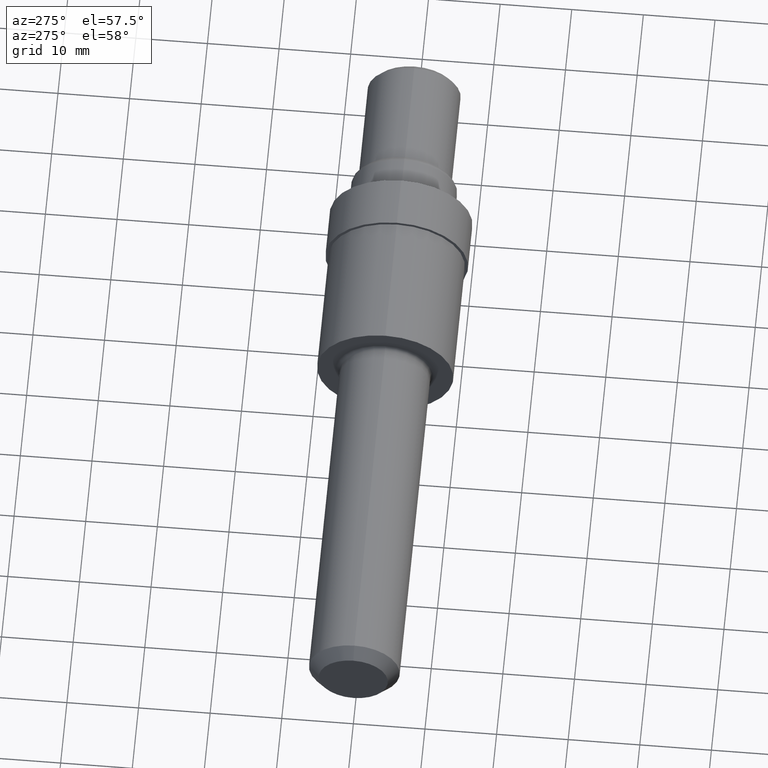
[diagram: clean part render]
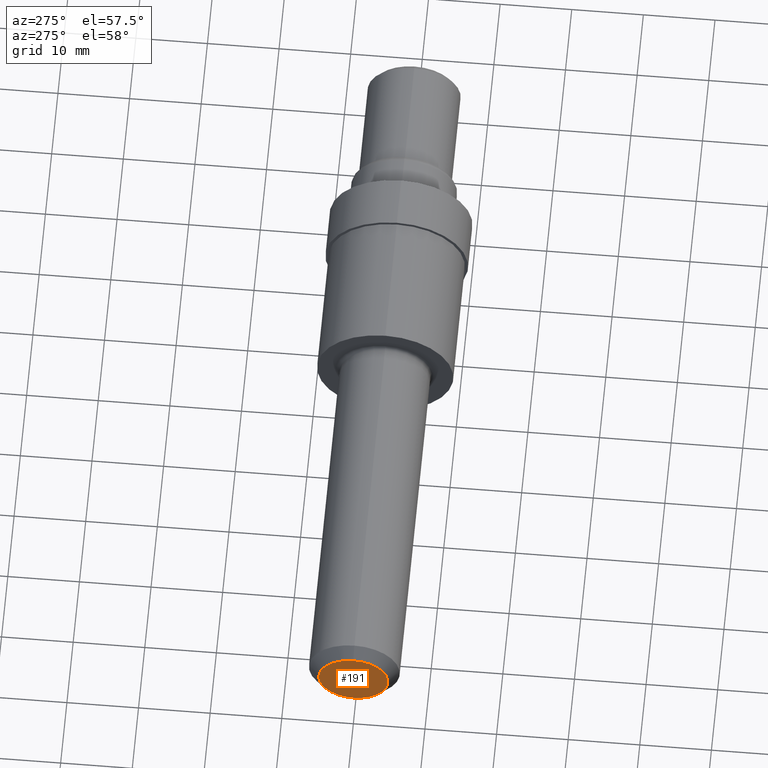
[diagram: same view with one face highlighted and labeled with its STEP entity id]
A machine part, auxiliary view. The second image highlights one B-rep face of the part: STEP entity #191.
In plain terms, the highlighted planar face has unit normal (1, 0, 0).
Its self-contained STEP definition (entity closure, byte-faithful):
#14 = DIRECTION ( 'NONE',  ( 0.0000000000000000000, 0.0000000000000000000, 1.000000000000000000 ) ) ;
#16 = DIRECTION ( 'NONE',  ( -1.000000000000000000, -0.0000000000000000000, -0.0000000000000000000 ) ) ;
#79 = DIRECTION ( 'NONE',  ( 0.0000000000000000000, 0.0000000000000000000, -1.000000000000000000 ) ) ;
#93 = CIRCLE ( 'NONE', #472, 0.1898500000000002408 ) ;
#108 = FACE_OUTER_BOUND ( 'NONE', #370, .T. ) ;
#131 = PLANE ( 'NONE',  #267 ) ;
#142 = CIRCLE ( 'NONE', #601, 0.1898500000000002408 ) ;
#168 = EDGE_CURVE ( 'NONE', #440, #697, #142, .T. ) ;
#191 = ADVANCED_FACE ( 'NONE', ( #108 ), #131, .F. ) ;
#201 = EDGE_CURVE ( 'NONE', #697, #440, #93, .T. ) ;
#266 = DIRECTION ( 'NONE',  ( 0.0000000000000000000, 0.0000000000000000000, 1.000000000000000000 ) ) ;
#267 = AXIS2_PLACEMENT_3D ( 'NONE', #737, #486, #79 ) ;
#281 = CARTESIAN_POINT ( 'NONE',  ( 0.0000000000000000000, 0.0000000000000000000, 0.0000000000000000000 ) ) ;
#284 = CARTESIAN_POINT ( 'NONE',  ( 0.0000000000000000000, 2.692385987925457090E-17, 0.1898500000000002408 ) ) ;
#325 = ORIENTED_EDGE ( 'NONE', *, *, #168, .T. ) ;
#370 = EDGE_LOOP ( 'NONE', ( #499, #325 ) ) ;
#376 = DIRECTION ( 'NONE',  ( -1.000000000000000000, -0.0000000000000000000, -0.0000000000000000000 ) ) ;
#440 = VERTEX_POINT ( 'NONE', #284 ) ;
#472 = AXIS2_PLACEMENT_3D ( 'NONE', #702, #16, #14 ) ;
#477 = CARTESIAN_POINT ( 'NONE',  ( 0.0000000000000000000, 0.0000000000000000000, -0.1898500000000002408 ) ) ;
#486 = DIRECTION ( 'NONE',  ( 1.000000000000000000, 0.0000000000000000000, 0.0000000000000000000 ) ) ;
#499 = ORIENTED_EDGE ( 'NONE', *, *, #201, .T. ) ;
#601 = AXIS2_PLACEMENT_3D ( 'NONE', #281, #376, #266 ) ;
#697 = VERTEX_POINT ( 'NONE', #477 ) ;
#702 = CARTESIAN_POINT ( 'NONE',  ( 0.0000000000000000000, 0.0000000000000000000, 0.0000000000000000000 ) ) ;
#737 = CARTESIAN_POINT ( 'NONE',  ( 0.0000000000000000000, 0.0000000000000000000, 0.0000000000000000000 ) ) ;